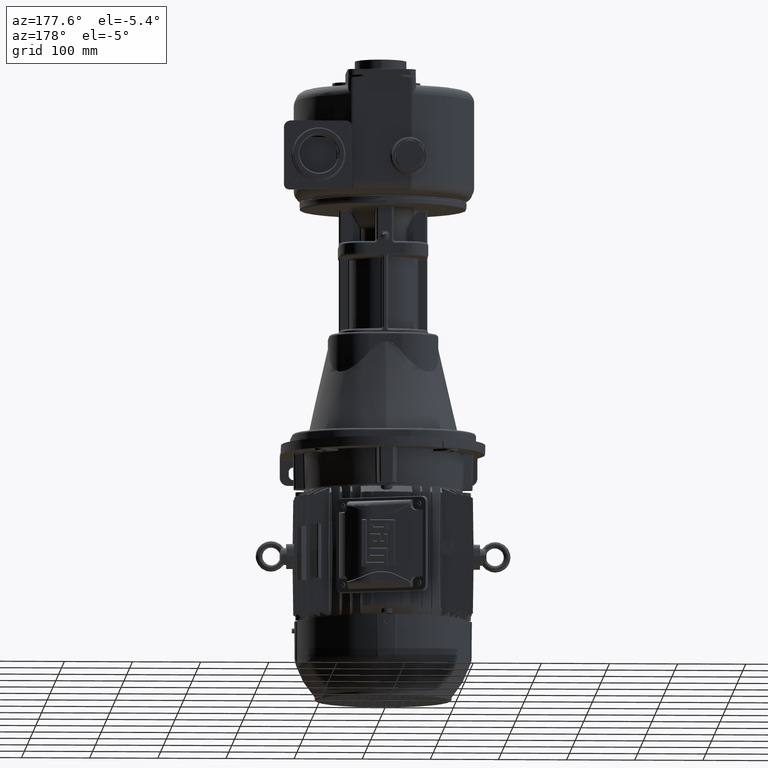
[diagram: clean part render]
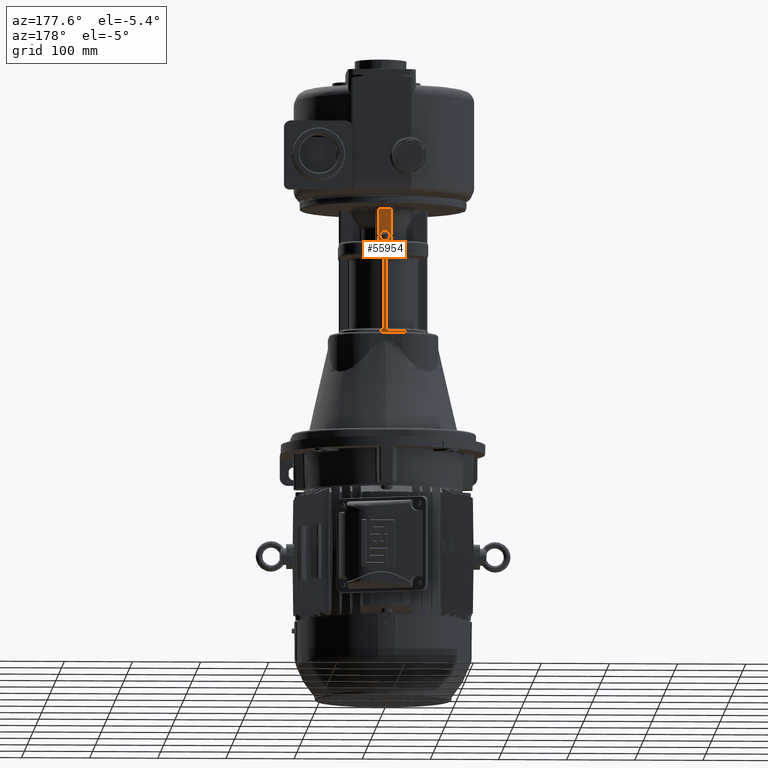
[diagram: same view with one face highlighted and labeled with its STEP entity id]
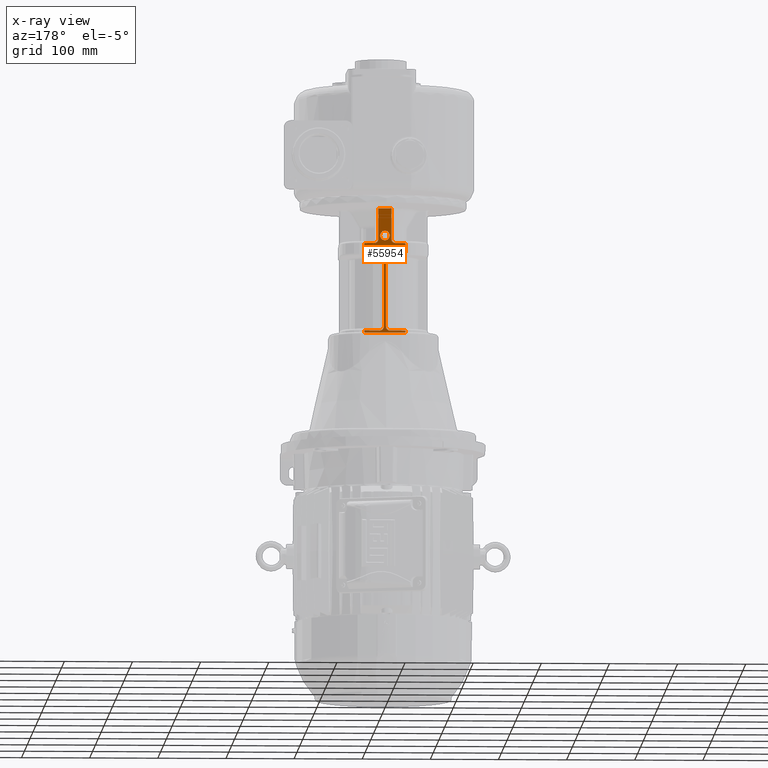
[diagram: x-ray of the same camera — body ghosted, the highlighted face saturated]
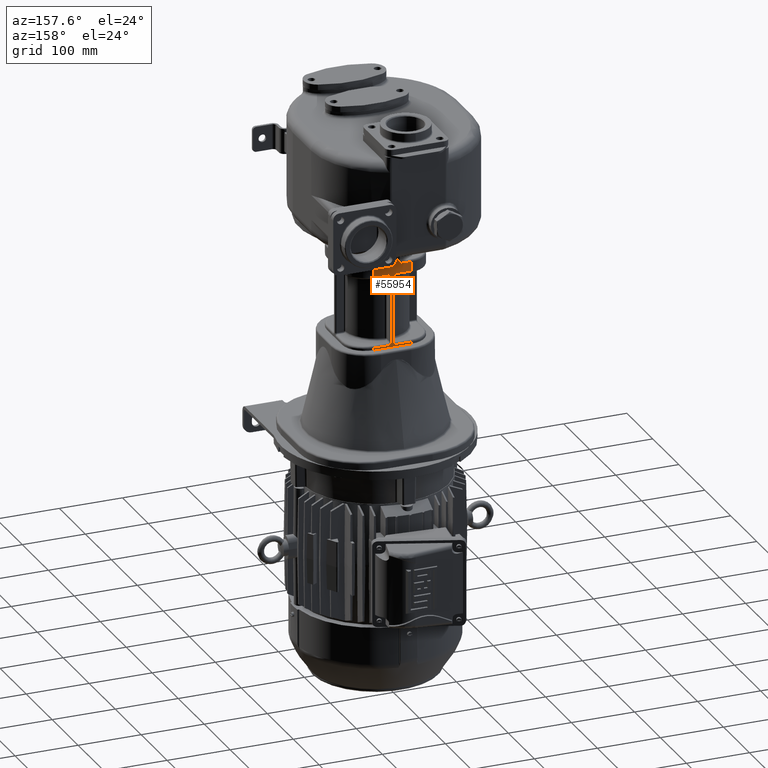
[diagram: same view with one face highlighted and labeled with its STEP entity id]
A machine part, auxiliary view. The second image highlights one B-rep face of the part: STEP entity #55954.
The next image is the same camera in x-ray: the body ghosted, the highlighted face saturated — about 0% of this face is hidden behind the body in this view.
A second angle (auxiliary view) of the same face is appended — the face is thin or edge-on in the first view.
In plain terms, the highlighted planar face has unit normal (0, 1, 0).
Its self-contained STEP definition (entity closure, byte-faithful):
#3049=DIRECTION('',(1.E0,0.E0,0.E0));
#3050=VECTOR('',#3049,6.E1);
#3051=CARTESIAN_POINT('',(-3.E1,1.96E2,-2.635E2));
#3052=LINE('',#3051,#3050);
#3053=DIRECTION('',(-1.E0,0.E0,0.E0));
#3054=VECTOR('',#3053,2.35E1);
#3055=CARTESIAN_POINT('',(3.E1,1.96E2,-2.605E2));
#3056=LINE('',#3055,#3054);
#3057=CARTESIAN_POINT('',(6.5E0,1.96E2,-2.605E2));
#3058=CARTESIAN_POINT('',(6.325199242299E0,1.959999989502E2,-2.604218268962E2));
#3059=CARTESIAN_POINT('',(5.993843982049E0,1.960000004872E2,-2.602734623803E2));
#3060=CARTESIAN_POINT('',(5.552224644003E0,1.959999998694E2,-2.600668744094E2));
#3061=CARTESIAN_POINT('',(5.174020698809E0,1.960000000350E2,-2.598776767174E2));
#3062=CARTESIAN_POINT('',(4.849155215577E0,1.959999999906E2,-2.597025852498E2));
#3063=CARTESIAN_POINT('',(4.555355515063E0,1.960000000025E2,-2.595316215017E2));
#3064=CARTESIAN_POINT('',(4.276603680242E0,1.959999999993E2,-2.593557461466E2));
#3065=CARTESIAN_POINT('',(4.014667564575E0,1.960000000002E2,-2.591757548071E2));
#3066=CARTESIAN_POINT('',(3.775003062448E0,1.96E2,-2.589964525714E2));
#3067=CARTESIAN_POINT('',(3.552358406382E0,1.96E2,-2.588153706767E2));
#3068=CARTESIAN_POINT('',(3.344799340577E0,1.96E2,-2.586318295489E2));
#3069=CARTESIAN_POINT('',(3.150767815277E0,1.96E2,-2.584452939144E2));
#3070=CARTESIAN_POINT('',(2.969182129555E0,1.96E2,-2.582554064438E2));
#3071=CARTESIAN_POINT('',(2.799309912610E0,1.96E2,-2.580619974420E2));
#3072=CARTESIAN_POINT('',(2.640614691958E0,1.96E2,-2.578649777901E2));
#3073=CARTESIAN_POINT('',(2.492728653746E0,1.96E2,-2.576643528083E2));
#3074=CARTESIAN_POINT('',(2.355392879680E0,1.96E2,-2.574601865086E2));
#3075=CARTESIAN_POINT('',(2.228433508886E0,1.96E2,-2.572526016169E2));
#3076=CARTESIAN_POINT('',(2.111736860362E0,1.96E2,-2.570417627641E2));
#3077=CARTESIAN_POINT('',(2.005233449136E0,1.96E2,-2.568278715711E2));
#3078=CARTESIAN_POINT('',(1.908885544117E0,1.96E2,-2.566111611462E2));
#3079=CARTESIAN_POINT('',(1.822676760915E0,1.96E2,-2.563918930832E2));
#3080=CARTESIAN_POINT('',(1.746603675119E0,1.96E2,-2.561703506180E2));
#3081=CARTESIAN_POINT('',(1.680672878865E0,1.959999999999E2,-2.559468420372E2));
#3082=CARTESIAN_POINT('',(1.624892173934E0,1.960000000002E2,-2.557216888524E2));
#3083=CARTESIAN_POINT('',(1.579267785950E0,1.959999999992E2,-2.554952184851E2));
#3084=CARTESIAN_POINT('',(1.543809071925E0,1.960000000028E2,-2.552678129818E2));
#3085=CARTESIAN_POINT('',(1.518505764158E0,1.959999999894E2,-2.550398151770E2));
#3086=CARTESIAN_POINT('',(1.503353175162E0,1.960000000395E2,-2.548115957577E2));
#3087=CARTESIAN_POINT('',(1.500000185057E0,1.959999999149E2,-2.546597831927E2));
#3088=CARTESIAN_POINT('',(1.5E0,1.959999999896E2,-2.545839202169E2));
#3090=DIRECTION('',(0.E0,-6.067524788176E-12,1.E0));
#3091=VECTOR('',#3090,1.021678404338E2);
#3092=CARTESIAN_POINT('',(1.5E0,1.959999999896E2,-2.545839202169E2));
#3093=LINE('',#3092,#3091);
#3094=CARTESIAN_POINT('',(1.5E0,1.959999999889E2,-1.524160797831E2));
#3095=CARTESIAN_POINT('',(1.500000187140E0,1.959999999127E2,-1.523402220546E2));
#3096=CARTESIAN_POINT('',(1.503352701519E0,1.960000000405E2,-1.521884199357E2));
#3097=CARTESIAN_POINT('',(1.518503255278E0,1.959999999891E2,-1.519602156974E2));
#3098=CARTESIAN_POINT('',(1.543803100883E0,1.960000000029E2,-1.517322336121E2));
#3099=CARTESIAN_POINT('',(1.579256819523E0,1.959999999992E2,-1.515048443139E2));
#3100=CARTESIAN_POINT('',(1.624874805298E0,1.960000000002E2,-1.512783896186E2));
#3101=CARTESIAN_POINT('',(1.680647665400E0,1.959999999999E2,-1.510532518469E2));
#3102=CARTESIAN_POINT('',(1.746569178221E0,1.96E2,-1.508297583227E2));
#3103=CARTESIAN_POINT('',(1.822631547286E0,1.96E2,-1.506082304729E2));
#3104=CARTESIAN_POINT('',(1.908828175785E0,1.96E2,-1.503889765354E2));
#3105=CARTESIAN_POINT('',(2.005162475488E0,1.96E2,-1.501722797012E2));
#3106=CARTESIAN_POINT('',(2.111650827298E0,1.96E2,-1.499584015245E2));
#3107=CARTESIAN_POINT('',(2.228330931201E0,1.96E2,-1.497475750865E2));
#3108=CARTESIAN_POINT('',(2.355272227672E0,1.96E2,-1.495400019887E2));
#3109=CARTESIAN_POINT('',(2.492588325462E0,1.96E2,-1.493358468608E2));
#3110=CARTESIAN_POINT('',(2.640452970064E0,1.96E2,-1.491352324668E2));
#3111=CARTESIAN_POINT('',(2.799124979400E0,1.96E2,-1.489382228106E2));
#3112=CARTESIAN_POINT('',(2.968971815723E0,1.96E2,-1.487448234341E2));
#3113=CARTESIAN_POINT('',(3.150529864556E0,1.96E2,-1.485549450532E2));
#3114=CARTESIAN_POINT('',(3.344530756737E0,1.96E2,-1.483684185540E2));
#3115=CARTESIAN_POINT('',(3.552054920635E0,1.96E2,-1.481848869932E2));
#3116=CARTESIAN_POINT('',(3.774664494314E0,1.96E2,-1.480038122616E2));
#3117=CARTESIAN_POINT('',(4.014266481621E0,1.960000000002E2,-1.478245330669E2));
#3118=CARTESIAN_POINT('',(4.276219021620E0,1.959999999993E2,-1.476445051690E2));
#3119=CARTESIAN_POINT('',(4.555076552782E0,1.960000000025E2,-1.474685456316E2));
#3120=CARTESIAN_POINT('',(4.848936361458E0,1.959999999907E2,-1.472975363189E2));
#3121=CARTESIAN_POINT('',(5.173852797689E0,1.960000000348E2,-1.471224095167E2));
#3122=CARTESIAN_POINT('',(5.552102580326E0,1.959999998700E2,-1.469331838005E2));
#3123=CARTESIAN_POINT('',(5.993779548802E0,1.960000004850E2,-1.467265664843E2));
#3124=CARTESIAN_POINT('',(6.325177047638E0,1.959999989550E2,-1.465781830297E2));
#3125=CARTESIAN_POINT('',(6.5E0,1.96E2,-1.465E2));
#3127=DIRECTION('',(1.E0,0.E0,0.E0));
#3128=VECTOR('',#3127,2.35E1);
#3129=CARTESIAN_POINT('',(6.5E0,1.96E2,-1.465E2));
#3130=LINE('',#3129,#3128);
#3131=DIRECTION('',(-1.E0,0.E0,1.452447357822E-12));
#3132=VECTOR('',#3131,1.449999999966E1);
#3133=CARTESIAN_POINT('',(3.E1,1.96E2,-1.315E2));
#3134=LINE('',#3133,#3132);
#3135=CARTESIAN_POINT('',(1.55E1,1.96E2,-1.255E2));
#3136=DIRECTION('',(0.E0,-1.E0,0.E0));
#3137=DIRECTION('',(-1.E0,0.E0,-1.184237892934E-14));
#3138=AXIS2_PLACEMENT_3D('',#3135,#3136,#3137);
#3140=DIRECTION('',(4.149411678464E-12,0.E0,-1.E0));
#3141=VECTOR('',#3140,4.499999999988E1);
#3142=CARTESIAN_POINT('',(9.499999999848E0,1.96E2,-8.05E1));
#3143=LINE('',#3142,#3141);
#3144=DIRECTION('',(1.E0,0.E0,0.E0));
#3145=VECTOR('',#3144,1.899999999981E1);
#3146=CARTESIAN_POINT('',(-9.499999999961E0,1.96E2,-8.05E1));
#3147=LINE('',#3146,#3145);
#3148=DIRECTION('',(-1.263108136612E-12,0.E0,-1.E0));
#3149=VECTOR('',#3148,4.499999999969E1);
#3150=CARTESIAN_POINT('',(-9.499999999961E0,1.96E2,-8.05E1));
#3151=LINE('',#3150,#3149);
#3152=CARTESIAN_POINT('',(-1.55E1,1.96E2,-1.255E2));
#3153=DIRECTION('',(0.E0,1.E0,0.E0));
#3154=DIRECTION('',(1.E0,0.E0,0.E0));
#3155=AXIS2_PLACEMENT_3D('',#3152,#3153,#3154);
#3157=DIRECTION('',(-1.E0,0.E0,-1.460287829386E-12));
#3158=VECTOR('',#3157,1.449999999969E1);
#3159=CARTESIAN_POINT('',(-1.550000000029E1,1.96E2,-1.315E2));
#3160=LINE('',#3159,#3158);
#3161=DIRECTION('',(1.E0,0.E0,0.E0));
#3162=VECTOR('',#3161,2.35E1);
#3163=CARTESIAN_POINT('',(-3.E1,1.96E2,-1.465E2));
#3164=LINE('',#3163,#3162);
#3165=CARTESIAN_POINT('',(-6.5E0,1.96E2,-1.465E2));
#3166=CARTESIAN_POINT('',(-6.325199242298E0,1.959999989502E2,
-1.465781731038E2));
#3167=CARTESIAN_POINT('',(-5.993843982048E0,1.960000004872E2,
-1.467265376197E2));
#3168=CARTESIAN_POINT('',(-5.552224644004E0,1.959999998694E2,
-1.469331255906E2));
#3169=CARTESIAN_POINT('',(-5.174020698811E0,1.960000000350E2,
-1.471223232826E2));
#3170=CARTESIAN_POINT('',(-4.849155215580E0,1.959999999906E2,
-1.472974147502E2));
#3171=CARTESIAN_POINT('',(-4.555355515065E0,1.960000000025E2,
-1.474683784983E2));
#3172=CARTESIAN_POINT('',(-4.276603680244E0,1.959999999993E2,
-1.476442538534E2));
#3173=CARTESIAN_POINT('',(-4.014667564575E0,1.960000000002E2,
-1.478242451929E2));
#3174=CARTESIAN_POINT('',(-3.775003062448E0,1.96E2,-1.480035474286E2));
#3175=CARTESIAN_POINT('',(-3.552358406383E0,1.96E2,-1.481846293233E2));
#3176=CARTESIAN_POINT('',(-3.344799340577E0,1.96E2,-1.483681704511E2));
#3177=CARTESIAN_POINT('',(-3.150767815278E0,1.96E2,-1.485547060856E2));
#3178=CARTESIAN_POINT('',(-2.969182129556E0,1.96E2,-1.487445935562E2));
#3179=CARTESIAN_POINT('',(-2.799309912611E0,1.96E2,-1.489380025580E2));
#3180=CARTESIAN_POINT('',(-2.640614691958E0,1.96E2,-1.491350222099E2));
#3181=CARTESIAN_POINT('',(-2.492728653747E0,1.96E2,-1.493356471917E2));
#3182=CARTESIAN_POINT('',(-2.355392879680E0,1.96E2,-1.495398134914E2));
#3183=CARTESIAN_POINT('',(-2.228433508887E0,1.96E2,-1.497473983831E2));
#3184=CARTESIAN_POINT('',(-2.111736860363E0,1.96E2,-1.499582372359E2));
#3185=CARTESIAN_POINT('',(-2.005233449137E0,1.96E2,-1.501721284289E2));
#3186=CARTESIAN_POINT('',(-1.908885544117E0,1.96E2,-1.503888388538E2));
#3187=CARTESIAN_POINT('',(-1.822676760915E0,1.96E2,-1.506081069168E2));
#3188=CARTESIAN_POINT('',(-1.746603675119E0,1.96E2,-1.508296493820E2));
#3189=CARTESIAN_POINT('',(-1.680672878865E0,1.959999999999E2,
-1.510531579628E2));
#3190=CARTESIAN_POINT('',(-1.624892173934E0,1.960000000002E2,
-1.512783111476E2));
#3191=CARTESIAN_POINT('',(-1.579267785950E0,1.959999999992E2,
-1.515047815149E2));
#3192=CARTESIAN_POINT('',(-1.543809071925E0,1.960000000028E2,
-1.517321870182E2));
#3193=CARTESIAN_POINT('',(-1.518505764158E0,1.959999999894E2,
-1.519601848230E2));
#3194=CARTESIAN_POINT('',(-1.503353175161E0,1.960000000395E2,
-1.521884042423E2));
#3195=CARTESIAN_POINT('',(-1.500000185056E0,1.959999999149E2,
-1.523402168073E2));
#3196=CARTESIAN_POINT('',(-1.5E0,1.959999999896E2,-1.524160797831E2));
#3198=DIRECTION('',(0.E0,-6.072253957926E-12,-1.E0));
#3199=VECTOR('',#3198,1.021678404338E2);
#3200=CARTESIAN_POINT('',(-1.5E0,1.959999999896E2,-1.524160797831E2));
#3201=LINE('',#3200,#3199);
#3202=CARTESIAN_POINT('',(-1.5E0,1.959999999889E2,-2.545839202169E2));
#3203=CARTESIAN_POINT('',(-1.500000187140E0,1.959999999127E2,
-2.546597779454E2));
#3204=CARTESIAN_POINT('',(-1.503352701518E0,1.960000000405E2,
-2.548115800643E2));
#3205=CARTESIAN_POINT('',(-1.518503255278E0,1.959999999891E2,
-2.550397843026E2));
#3206=CARTESIAN_POINT('',(-1.543803100883E0,1.960000000029E2,
-2.552677663879E2));
#3207=CARTESIAN_POINT('',(-1.579256819523E0,1.959999999992E2,
-2.554951556861E2));
#3208=CARTESIAN_POINT('',(-1.624874805297E0,1.960000000002E2,
-2.557216103814E2));
#3209=CARTESIAN_POINT('',(-1.680647665400E0,1.959999999999E2,
-2.559467481531E2));
#3210=CARTESIAN_POINT('',(-1.746569178221E0,1.96E2,-2.561702416773E2));
#3211=CARTESIAN_POINT('',(-1.822631547286E0,1.96E2,-2.563917695271E2));
#3212=CARTESIAN_POINT('',(-1.908828175785E0,1.96E2,-2.566110234646E2));
#3213=CARTESIAN_POINT('',(-2.005162475488E0,1.96E2,-2.568277202988E2));
#3214=CARTESIAN_POINT('',(-2.111650827298E0,1.96E2,-2.570415984755E2));
#3215=CARTESIAN_POINT('',(-2.228330931200E0,1.96E2,-2.572524249135E2));
#3216=CARTESIAN_POINT('',(-2.355272227672E0,1.96E2,-2.574599980113E2));
#3217=CARTESIAN_POINT('',(-2.492588325461E0,1.96E2,-2.576641531392E2));
#3218=CARTESIAN_POINT('',(-2.640452970064E0,1.96E2,-2.578647675332E2));
#3219=CARTESIAN_POINT('',(-2.799124979400E0,1.96E2,-2.580617771894E2));
#3220=CARTESIAN_POINT('',(-2.968971815722E0,1.96E2,-2.582551765659E2));
#3221=CARTESIAN_POINT('',(-3.150529864556E0,1.96E2,-2.584450549468E2));
#3222=CARTESIAN_POINT('',(-3.344530756736E0,1.96E2,-2.586315814460E2));
#3223=CARTESIAN_POINT('',(-3.552054920634E0,1.96E2,-2.588151130068E2));
#3224=CARTESIAN_POINT('',(-3.774664494313E0,1.96E2,-2.589961877384E2));
#3225=CARTESIAN_POINT('',(-4.014266481618E0,1.960000000002E2,
-2.591754669331E2));
#3226=CARTESIAN_POINT('',(-4.276219021618E0,1.959999999993E2,
-2.593554948310E2));
#3227=CARTESIAN_POINT('',(-4.555076552780E0,1.960000000025E2,
-2.595314543684E2));
#3228=CARTESIAN_POINT('',(-4.848936361456E0,1.959999999907E2,
-2.597024636811E2));
#3229=CARTESIAN_POINT('',(-5.173852797687E0,1.960000000348E2,
-2.598775904833E2));
#3230=CARTESIAN_POINT('',(-5.552102580326E0,1.959999998700E2,
-2.600668161995E2));
#3231=CARTESIAN_POINT('',(-5.993779548806E0,1.960000004850E2,
-2.602734335157E2));
#3232=CARTESIAN_POINT('',(-6.325177047640E0,1.959999989550E2,
-2.604218169703E2));
#3233=CARTESIAN_POINT('',(-6.5E0,1.96E2,-2.605E2));
#3235=DIRECTION('',(-1.E0,0.E0,0.E0));
#3236=VECTOR('',#3235,2.35E1);
#3237=CARTESIAN_POINT('',(-6.5E0,1.96E2,-2.605E2));
#3238=LINE('',#3237,#3236);
#3239=DIRECTION('',(0.E0,0.E0,1.E0));
#3240=VECTOR('',#3239,3.E0);
#3241=CARTESIAN_POINT('',(-3.E1,1.96E2,-2.635E2));
#3242=LINE('',#3241,#3240);
#35799=DIRECTION('',(7.429908540265E-13,0.E0,1.E0));
#35800=VECTOR('',#35799,1.5E1);
#35801=CARTESIAN_POINT('',(-3.E1,1.96E2,-1.465E2));
#35802=LINE('',#35801,#35800);
#39196=DIRECTION('',(2.062942409490E-13,0.E0,-1.E0));
#39197=VECTOR('',#39196,1.5E1);
#39198=CARTESIAN_POINT('',(3.E1,1.96E2,-1.315E2));
#39199=LINE('',#39198,#39197);
#39363=DIRECTION('',(2.415845301584E-13,0.E0,1.E0));
#39364=VECTOR('',#39363,3.E0);
#39365=CARTESIAN_POINT('',(3.E1,1.96E2,-2.635E2));
#39366=LINE('',#39365,#39364);
#40276=CARTESIAN_POINT('',(7.348928308168E-14,1.96E2,-1.205E2));
#40277=DIRECTION('',(0.E0,1.E0,0.E0));
#40278=DIRECTION('',(0.E0,0.E0,1.E0));
#40279=AXIS2_PLACEMENT_3D('',#40276,#40277,#40278);
#40357=CARTESIAN_POINT('',(7.348928308168E-14,1.96E2,-1.205E2));
#40358=DIRECTION('',(0.E0,1.E0,0.E0));
#40359=DIRECTION('',(-8.660254037846E-1,0.E0,4.999999999998E-1));
#40360=AXIS2_PLACEMENT_3D('',#40357,#40358,#40359);
#40438=CARTESIAN_POINT('',(7.348928308168E-14,1.96E2,-1.205E2));
#40439=DIRECTION('',(0.E0,1.E0,0.E0));
#40440=DIRECTION('',(-8.660254037846E-1,0.E0,-4.999999999998E-1));
#40441=AXIS2_PLACEMENT_3D('',#40438,#40439,#40440);
#40519=CARTESIAN_POINT('',(7.348928308168E-14,1.96E2,-1.205E2));
#40520=DIRECTION('',(0.E0,1.E0,0.E0));
#40521=DIRECTION('',(-1.100599953721E-14,0.E0,-1.E0));
#40522=AXIS2_PLACEMENT_3D('',#40519,#40520,#40521);
#40600=CARTESIAN_POINT('',(7.348928308168E-14,1.96E2,-1.205E2));
#40601=DIRECTION('',(0.E0,1.E0,0.E0));
#40602=DIRECTION('',(8.660254037846E-1,0.E0,-4.999999999997E-1));
#40603=AXIS2_PLACEMENT_3D('',#40600,#40601,#40602);
#40681=CARTESIAN_POINT('',(7.348928308168E-14,1.96E2,-1.205E2));
#40682=DIRECTION('',(0.E0,1.E0,0.E0));
#40683=DIRECTION('',(8.660254037845E-1,0.E0,4.999999999998E-1));
#40684=AXIS2_PLACEMENT_3D('',#40681,#40682,#40683);
#45257=CARTESIAN_POINT('',(-9.499999999961E0,1.96E2,-8.05E1));
#45258=CARTESIAN_POINT('',(-9.500000000018E0,1.96E2,-1.254999999997E2));
#45259=VERTEX_POINT('',#45257);
#45260=VERTEX_POINT('',#45258);
#45261=CARTESIAN_POINT('',(9.499999999848E0,1.96E2,-8.05E1));
#45262=VERTEX_POINT('',#45261);
#45285=CARTESIAN_POINT('',(-1.550000000029E1,1.96E2,-1.315E2));
#45286=CARTESIAN_POINT('',(-2.999999999999E1,1.96E2,-1.315E2));
#45287=VERTEX_POINT('',#45285);
#45288=VERTEX_POINT('',#45286);
#45427=CARTESIAN_POINT('',(3.E1,1.96E2,-1.315E2));
#45428=VERTEX_POINT('',#45427);
#45429=CARTESIAN_POINT('',(1.550000000033E1,1.96E2,-1.315E2));
#45430=VERTEX_POINT('',#45429);
#45449=CARTESIAN_POINT('',(9.500000000035E0,1.96E2,-1.254999999999E2));
#45450=VERTEX_POINT('',#45449);
#45520=CARTESIAN_POINT('',(7.105427357601E-14,1.96E2,-1.135E2));
#45521=CARTESIAN_POINT('',(6.062177826492E0,1.96E2,-1.17E2));
#45522=VERTEX_POINT('',#45520);
#45523=VERTEX_POINT('',#45521);
#45524=CARTESIAN_POINT('',(6.062177826492E0,1.96E2,-1.24E2));
#45525=VERTEX_POINT('',#45524);
#45526=CARTESIAN_POINT('',(0.E0,1.96E2,-1.275E2));
#45527=VERTEX_POINT('',#45526);
#45528=CARTESIAN_POINT('',(-6.062177826492E0,1.96E2,-1.24E2));
#45529=VERTEX_POINT('',#45528);
#45530=CARTESIAN_POINT('',(-6.062177826492E0,1.96E2,-1.17E2));
#45531=VERTEX_POINT('',#45530);
#45564=CARTESIAN_POINT('',(-3.E1,1.96E2,-2.605E2));
#45565=VERTEX_POINT('',#45564);
#45566=CARTESIAN_POINT('',(3.E1,1.96E2,-2.605E2));
#45567=VERTEX_POINT('',#45566);
#45568=CARTESIAN_POINT('',(3.E1,1.96E2,-1.465E2));
#45569=VERTEX_POINT('',#45568);
#45570=CARTESIAN_POINT('',(-3.E1,1.96E2,-1.465E2));
#45571=VERTEX_POINT('',#45570);
#45572=CARTESIAN_POINT('',(1.5E0,1.959999999896E2,-2.545839202169E2));
#45573=CARTESIAN_POINT('',(1.5E0,1.959999999889E2,-1.524160797831E2));
#45574=VERTEX_POINT('',#45572);
#45575=VERTEX_POINT('',#45573);
#45580=CARTESIAN_POINT('',(-1.5E0,1.959999999896E2,-1.524160797831E2));
#45581=CARTESIAN_POINT('',(-1.5E0,1.959999999889E2,-2.545839202169E2));
#45582=VERTEX_POINT('',#45580);
#45583=VERTEX_POINT('',#45581);
#45652=CARTESIAN_POINT('',(6.5E0,1.96E2,-2.605E2));
#45653=VERTEX_POINT('',#45652);
#45654=CARTESIAN_POINT('',(6.5E0,1.96E2,-1.465E2));
#45655=VERTEX_POINT('',#45654);
#45656=CARTESIAN_POINT('',(-6.5E0,1.96E2,-1.465E2));
#45657=VERTEX_POINT('',#45656);
#45658=CARTESIAN_POINT('',(-6.5E0,1.96E2,-2.605E2));
#45659=VERTEX_POINT('',#45658);
#45958=CARTESIAN_POINT('',(-3.E1,1.96E2,-2.635E2));
#45959=CARTESIAN_POINT('',(3.E1,1.96E2,-2.635E2));
#45960=VERTEX_POINT('',#45958);
#45961=VERTEX_POINT('',#45959);
#55890=CARTESIAN_POINT('',(-3.E1,1.96E2,-1.285E2));
#55891=DIRECTION('',(0.E0,1.E0,0.E0));
#55892=DIRECTION('',(1.E0,0.E0,0.E0));
#55893=AXIS2_PLACEMENT_3D('',#55890,#55891,#55892);
#55894=PLANE('',#55893);
#55896=ORIENTED_EDGE('',*,*,#55895,.T.);
#55898=ORIENTED_EDGE('',*,*,#55897,.T.);
#55900=ORIENTED_EDGE('',*,*,#55899,.T.);
#55902=ORIENTED_EDGE('',*,*,#55901,.T.);
#55904=ORIENTED_EDGE('',*,*,#55903,.T.);
#55906=ORIENTED_EDGE('',*,*,#55905,.T.);
#55908=ORIENTED_EDGE('',*,*,#55907,.T.);
#55910=ORIENTED_EDGE('',*,*,#55909,.F.);
#55912=ORIENTED_EDGE('',*,*,#55911,.T.);
#55914=ORIENTED_EDGE('',*,*,#55913,.F.);
#55916=ORIENTED_EDGE('',*,*,#55915,.F.);
#55917=ORIENTED_EDGE('',*,*,#55880,.F.);
#55919=ORIENTED_EDGE('',*,*,#55918,.T.);
#55921=ORIENTED_EDGE('',*,*,#55920,.T.);
#55923=ORIENTED_EDGE('',*,*,#55922,.T.);
#55925=ORIENTED_EDGE('',*,*,#55924,.F.);
#55927=ORIENTED_EDGE('',*,*,#55926,.T.);
#55929=ORIENTED_EDGE('',*,*,#55928,.T.);
#55931=ORIENTED_EDGE('',*,*,#55930,.T.);
#55933=ORIENTED_EDGE('',*,*,#55932,.T.);
#55935=ORIENTED_EDGE('',*,*,#55934,.T.);
#55937=ORIENTED_EDGE('',*,*,#55936,.F.);
#55938=EDGE_LOOP('',(#55896,#55898,#55900,#55902,#55904,#55906,#55908,#55910,
#55912,#55914,#55916,#55917,#55919,#55921,#55923,#55925,#55927,#55929,#55931,
#55933,#55935,#55937));
#55939=FACE_OUTER_BOUND('',#55938,.F.);
#55941=ORIENTED_EDGE('',*,*,#55940,.T.);
#55943=ORIENTED_EDGE('',*,*,#55942,.T.);
#55945=ORIENTED_EDGE('',*,*,#55944,.T.);
#55947=ORIENTED_EDGE('',*,*,#55946,.T.);
#55949=ORIENTED_EDGE('',*,*,#55948,.T.);
#55951=ORIENTED_EDGE('',*,*,#55950,.T.);
#55952=EDGE_LOOP('',(#55941,#55943,#55945,#55947,#55949,#55951));
#55953=FACE_BOUND('',#55952,.F.);
#55954=ADVANCED_FACE('',(#55939,#55953),#55894,.T.);
#3089=B_SPLINE_CURVE_WITH_KNOTS('',3,(#3057,#3058,#3059,#3060,#3061,#3062,#3063,
#3064,#3065,#3066,#3067,#3068,#3069,#3070,#3071,#3072,#3073,#3074,#3075,#3076,
#3077,#3078,#3079,#3080,#3081,#3082,#3083,#3084,#3085,#3086,#3087,#3088),
.UNSPECIFIED.,.F.,.F.,(4,1,1,1,1,1,1,1,1,1,1,1,1,1,1,1,1,1,1,1,1,1,1,1,1,1,1,1,
1,4),(0.E0,3.448275862069E-2,6.896551724138E-2,1.034482758621E-1,
1.379310344828E-1,1.724137931034E-1,2.068965517241E-1,2.413793103448E-1,
2.758620689655E-1,3.103448275862E-1,3.448275862069E-1,3.793103448276E-1,
4.137931034483E-1,4.482758620690E-1,4.827586206897E-1,5.172413793103E-1,
5.517241379310E-1,5.862068965517E-1,6.206896551724E-1,6.551724137931E-1,
6.896551724138E-1,7.241379310345E-1,7.586206896552E-1,7.931034482759E-1,
8.275862068966E-1,8.620689655172E-1,8.965517241379E-1,9.310344827586E-1,
9.655172413793E-1,1.E0),.UNSPECIFIED.);
#3126=B_SPLINE_CURVE_WITH_KNOTS('',3,(#3094,#3095,#3096,#3097,#3098,#3099,#3100,
#3101,#3102,#3103,#3104,#3105,#3106,#3107,#3108,#3109,#3110,#3111,#3112,#3113,
#3114,#3115,#3116,#3117,#3118,#3119,#3120,#3121,#3122,#3123,#3124,#3125),
.UNSPECIFIED.,.F.,.F.,(4,1,1,1,1,1,1,1,1,1,1,1,1,1,1,1,1,1,1,1,1,1,1,1,1,1,1,1,
1,4),(0.E0,3.448275862069E-2,6.896551724138E-2,1.034482758621E-1,
1.379310344828E-1,1.724137931034E-1,2.068965517241E-1,2.413793103448E-1,
2.758620689655E-1,3.103448275862E-1,3.448275862069E-1,3.793103448276E-1,
4.137931034483E-1,4.482758620690E-1,4.827586206897E-1,5.172413793103E-1,
5.517241379310E-1,5.862068965517E-1,6.206896551724E-1,6.551724137931E-1,
6.896551724138E-1,7.241379310345E-1,7.586206896552E-1,7.931034482759E-1,
8.275862068966E-1,8.620689655172E-1,8.965517241379E-1,9.310344827586E-1,
9.655172413793E-1,1.E0),.UNSPECIFIED.);
#3139=CIRCLE('',#3138,6.E0);
#3156=CIRCLE('',#3155,6.E0);
#3197=B_SPLINE_CURVE_WITH_KNOTS('',3,(#3165,#3166,#3167,#3168,#3169,#3170,#3171,
#3172,#3173,#3174,#3175,#3176,#3177,#3178,#3179,#3180,#3181,#3182,#3183,#3184,
#3185,#3186,#3187,#3188,#3189,#3190,#3191,#3192,#3193,#3194,#3195,#3196),
.UNSPECIFIED.,.F.,.F.,(4,1,1,1,1,1,1,1,1,1,1,1,1,1,1,1,1,1,1,1,1,1,1,1,1,1,1,1,
1,4),(0.E0,3.448275862069E-2,6.896551724138E-2,1.034482758621E-1,
1.379310344828E-1,1.724137931034E-1,2.068965517241E-1,2.413793103448E-1,
2.758620689655E-1,3.103448275862E-1,3.448275862069E-1,3.793103448276E-1,
4.137931034483E-1,4.482758620690E-1,4.827586206897E-1,5.172413793103E-1,
5.517241379310E-1,5.862068965517E-1,6.206896551724E-1,6.551724137931E-1,
6.896551724138E-1,7.241379310345E-1,7.586206896552E-1,7.931034482759E-1,
8.275862068966E-1,8.620689655172E-1,8.965517241379E-1,9.310344827586E-1,
9.655172413793E-1,1.E0),.UNSPECIFIED.);
#3234=B_SPLINE_CURVE_WITH_KNOTS('',3,(#3202,#3203,#3204,#3205,#3206,#3207,#3208,
#3209,#3210,#3211,#3212,#3213,#3214,#3215,#3216,#3217,#3218,#3219,#3220,#3221,
#3222,#3223,#3224,#3225,#3226,#3227,#3228,#3229,#3230,#3231,#3232,#3233),
.UNSPECIFIED.,.F.,.F.,(4,1,1,1,1,1,1,1,1,1,1,1,1,1,1,1,1,1,1,1,1,1,1,1,1,1,1,1,
1,4),(0.E0,3.448275862069E-2,6.896551724138E-2,1.034482758621E-1,
1.379310344828E-1,1.724137931034E-1,2.068965517241E-1,2.413793103448E-1,
2.758620689655E-1,3.103448275862E-1,3.448275862069E-1,3.793103448276E-1,
4.137931034483E-1,4.482758620690E-1,4.827586206897E-1,5.172413793103E-1,
5.517241379310E-1,5.862068965517E-1,6.206896551724E-1,6.551724137931E-1,
6.896551724138E-1,7.241379310345E-1,7.586206896552E-1,7.931034482759E-1,
8.275862068966E-1,8.620689655172E-1,8.965517241379E-1,9.310344827586E-1,
9.655172413793E-1,1.E0),.UNSPECIFIED.);
#40280=CIRCLE('',#40279,7.E0);
#40361=CIRCLE('',#40360,7.E0);
#40442=CIRCLE('',#40441,7.E0);
#40523=CIRCLE('',#40522,7.E0);
#40604=CIRCLE('',#40603,7.E0);
#40685=CIRCLE('',#40684,7.E0);
#55880=EDGE_CURVE('',#45259,#45262,#3147,.T.);
#55895=EDGE_CURVE('',#45960,#45961,#3052,.T.);
#55897=EDGE_CURVE('',#45961,#45567,#39366,.T.);
#55899=EDGE_CURVE('',#45567,#45653,#3056,.T.);
#55901=EDGE_CURVE('',#45653,#45574,#3089,.T.);
#55903=EDGE_CURVE('',#45574,#45575,#3093,.T.);
#55905=EDGE_CURVE('',#45575,#45655,#3126,.T.);
#55907=EDGE_CURVE('',#45655,#45569,#3130,.T.);
#55909=EDGE_CURVE('',#45428,#45569,#39199,.T.);
#55911=EDGE_CURVE('',#45428,#45430,#3134,.T.);
#55913=EDGE_CURVE('',#45450,#45430,#3139,.T.);
#55915=EDGE_CURVE('',#45262,#45450,#3143,.T.);
#55918=EDGE_CURVE('',#45259,#45260,#3151,.T.);
#55920=EDGE_CURVE('',#45260,#45287,#3156,.T.);
#55922=EDGE_CURVE('',#45287,#45288,#3160,.T.);
#55924=EDGE_CURVE('',#45571,#45288,#35802,.T.);
#55926=EDGE_CURVE('',#45571,#45657,#3164,.T.);
#55928=EDGE_CURVE('',#45657,#45582,#3197,.T.);
#55930=EDGE_CURVE('',#45582,#45583,#3201,.T.);
#55932=EDGE_CURVE('',#45583,#45659,#3234,.T.);
#55934=EDGE_CURVE('',#45659,#45565,#3238,.T.);
#55936=EDGE_CURVE('',#45960,#45565,#3242,.T.);
#55940=EDGE_CURVE('',#45522,#45523,#40280,.T.);
#55942=EDGE_CURVE('',#45523,#45525,#40685,.T.);
#55944=EDGE_CURVE('',#45525,#45527,#40604,.T.);
#55946=EDGE_CURVE('',#45527,#45529,#40523,.T.);
#55948=EDGE_CURVE('',#45529,#45531,#40442,.T.);
#55950=EDGE_CURVE('',#45531,#45522,#40361,.T.);